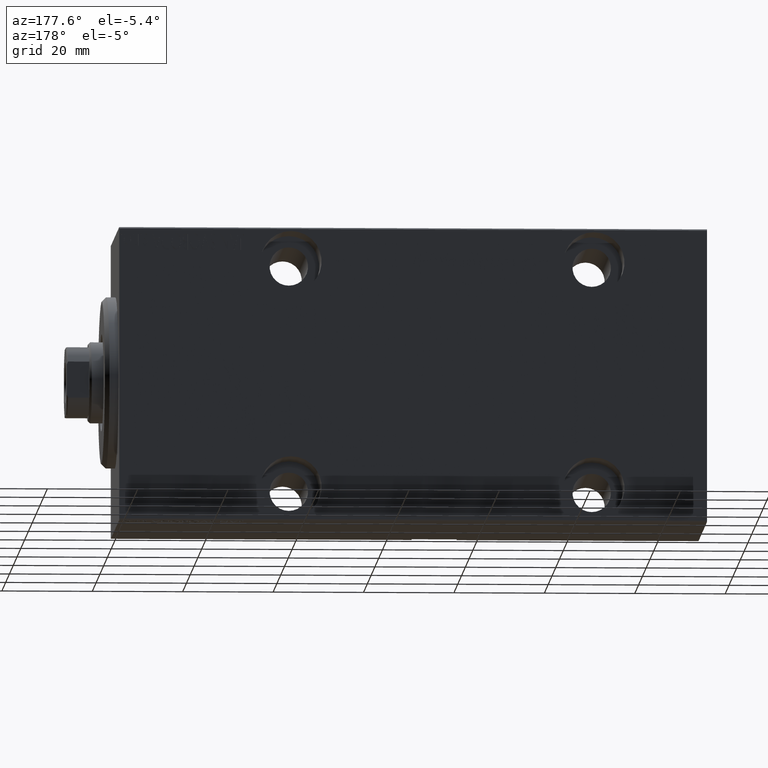
[diagram: clean part render]
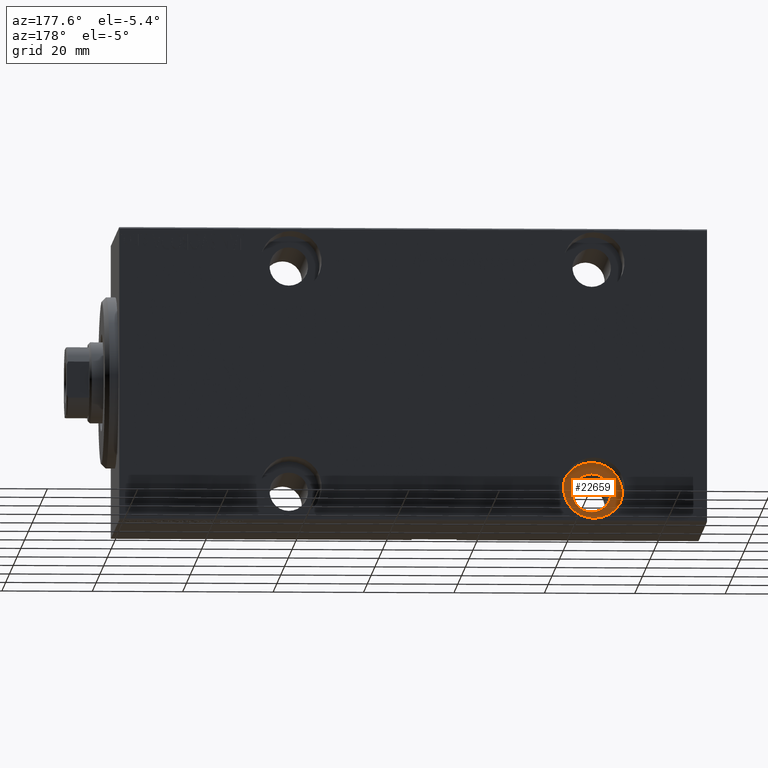
[diagram: same view with one face highlighted and labeled with its STEP entity id]
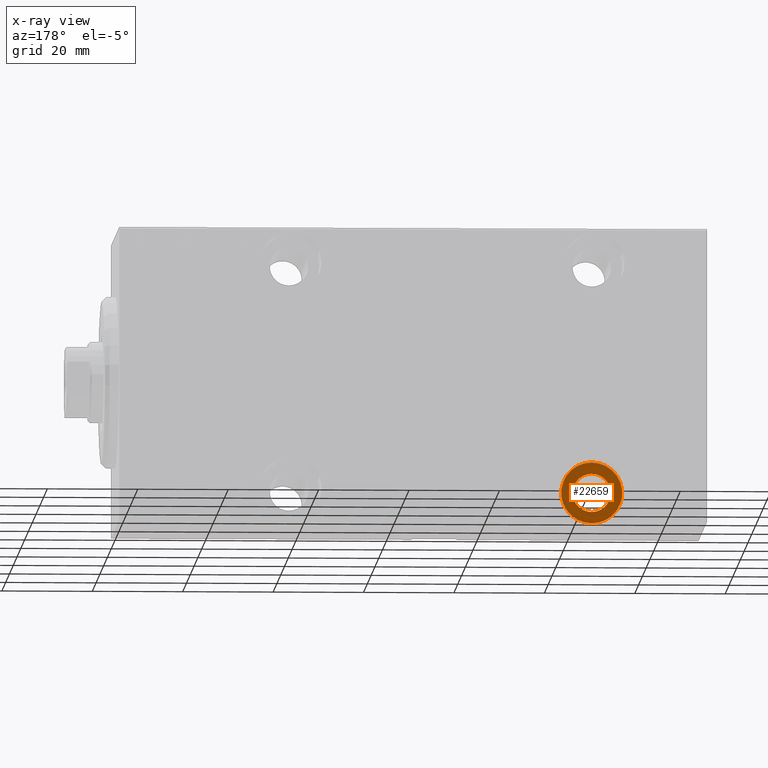
[diagram: x-ray of the same camera — body ghosted, the highlighted face saturated]
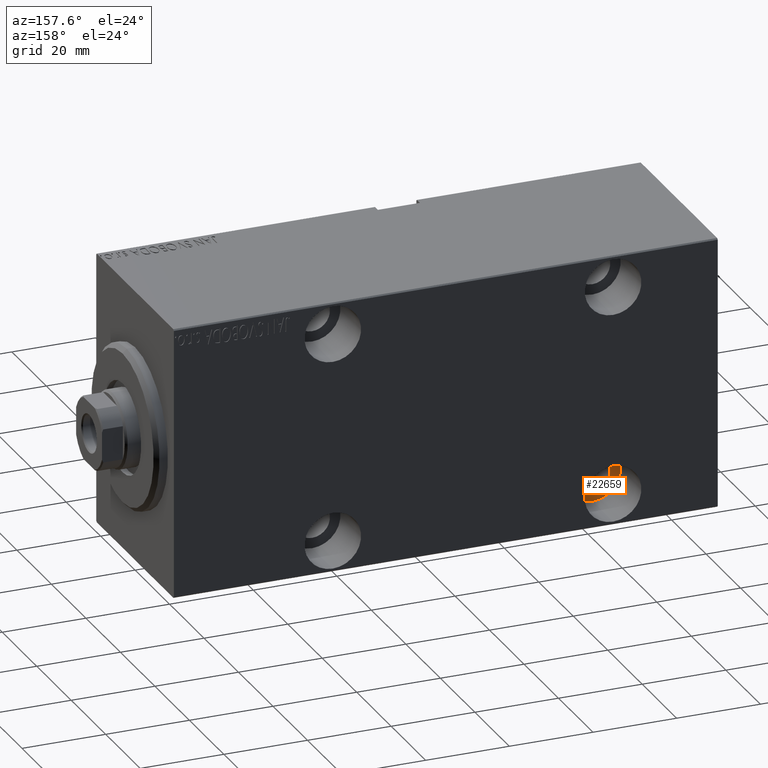
[diagram: same view with one face highlighted and labeled with its STEP entity id]
A machine part, auxiliary view. The second image highlights one B-rep face of the part: STEP entity #22659.
The next image is the same camera in x-ray: the body ghosted, the highlighted face saturated — about 0% of this face is hidden behind the body in this view.
A second angle (auxiliary view) of the same face is appended — the face is thin or edge-on in the first view.
In plain terms, the highlighted planar face has unit normal (0, 1, 0).
Its self-contained STEP definition (entity closure, byte-faithful):
#812 = DIRECTION ( 'NONE',  ( 0.000000000000000000, 0.000000000000000000, -1.000000000000000000 ) ) ;
#817 = AXIS2_PLACEMENT_3D ( 'NONE', #22912, #42435, #6422 ) ;
#1447 = EDGE_CURVE ( 'NONE', #11867, #24192, #18169, .T. ) ;
#3036 = CARTESIAN_POINT ( 'NONE',  ( 105.0000000000000142, -10.49999999999999467, -25.00000000000001421 ) ) ;
#6422 = DIRECTION ( 'NONE',  ( 0.000000000000000000, 0.000000000000000000, -1.000000000000000000 ) ) ;
#8928 = EDGE_LOOP ( 'NONE', ( #25080, #16443 ) ) ;
#9071 = FACE_OUTER_BOUND ( 'NONE', #8928, .T. ) ;
#9762 = DIRECTION ( 'NONE',  ( 0.000000000000000000, 0.000000000000000000, -1.000000000000000000 ) ) ;
#10317 = VERTEX_POINT ( 'NONE', #16777 ) ;
#11867 = VERTEX_POINT ( 'NONE', #40549 ) ;
#15093 = CARTESIAN_POINT ( 'NONE',  ( 105.0000000000000142, -10.49999999999999467, -29.25000000000001776 ) ) ;
#15711 = AXIS2_PLACEMENT_3D ( 'NONE', #30529, #40298, #812 ) ;
#16443 = ORIENTED_EDGE ( 'NONE', *, *, #39859, .T. ) ;
#16777 = CARTESIAN_POINT ( 'NONE',  ( 105.0000000000000142, -10.49999999999999467, -18.25000000000001776 ) ) ;
#16875 = CARTESIAN_POINT ( 'NONE',  ( 105.0000000000000142, -10.49999999999999467, -31.75000000000001421 ) ) ;
#17059 = VERTEX_POINT ( 'NONE', #16875 ) ;
#18169 = CIRCLE ( 'NONE', #817, 4.250000000000003553 ) ;
#18518 = CIRCLE ( 'NONE', #15711, 6.749999999999999112 ) ;
#19770 = EDGE_CURVE ( 'NONE', #17059, #10317, #18518, .T. ) ;
#19958 = DIRECTION ( 'NONE',  ( -0.000000000000000000, 1.000000000000000000, -0.000000000000000000 ) ) ;
#21667 = EDGE_CURVE ( 'NONE', #24192, #11867, #22684, .T. ) ;
#22309 = DIRECTION ( 'NONE',  ( 0.000000000000000000, -0.000000000000000000, -1.000000000000000000 ) ) ;
#22481 = ORIENTED_EDGE ( 'NONE', *, *, #21667, .T. ) ;
#22659 = ADVANCED_FACE ( 'NONE', ( #9071, #25356 ), #38583, .T. ) ;
#22684 = CIRCLE ( 'NONE', #42079, 4.250000000000003553 ) ;
#22912 = CARTESIAN_POINT ( 'NONE',  ( 105.0000000000000142, -10.49999999999999467, -25.00000000000001421 ) ) ;
#24192 = VERTEX_POINT ( 'NONE', #15093 ) ;
#24700 = DIRECTION ( 'NONE',  ( 0.000000000000000000, -1.000000000000000000, 0.000000000000000000 ) ) ;
#24718 = ORIENTED_EDGE ( 'NONE', *, *, #1447, .T. ) ;
#25080 = ORIENTED_EDGE ( 'NONE', *, *, #19770, .T. ) ;
#25356 = FACE_BOUND ( 'NONE', #33788, .T. ) ;
#25480 = AXIS2_PLACEMENT_3D ( 'NONE', #28391, #31652, #22309 ) ;
#28391 = CARTESIAN_POINT ( 'NONE',  ( 105.0000000000000142, -10.49999999999999467, -25.00000000000001421 ) ) ;
#30529 = CARTESIAN_POINT ( 'NONE',  ( 105.0000000000000142, -10.49999999999999467, -25.00000000000001421 ) ) ;
#30911 = AXIS2_PLACEMENT_3D ( 'NONE', #41195, #24700, #38153 ) ;
#31652 = DIRECTION ( 'NONE',  ( 0.000000000000000000, -1.000000000000000000, 0.000000000000000000 ) ) ;
#33788 = EDGE_LOOP ( 'NONE', ( #24718, #22481 ) ) ;
#38153 = DIRECTION ( 'NONE',  ( 0.000000000000000000, 0.000000000000000000, -1.000000000000000000 ) ) ;
#38583 = PLANE ( 'NONE',  #25480 ) ;
#39859 = EDGE_CURVE ( 'NONE', #10317, #17059, #42690, .T. ) ;
#40298 = DIRECTION ( 'NONE',  ( 0.000000000000000000, -1.000000000000000000, 0.000000000000000000 ) ) ;
#40549 = CARTESIAN_POINT ( 'NONE',  ( 105.0000000000000142, -10.49999999999999467, -20.75000000000001066 ) ) ;
#41195 = CARTESIAN_POINT ( 'NONE',  ( 105.0000000000000142, -10.49999999999999467, -25.00000000000001421 ) ) ;
#42079 = AXIS2_PLACEMENT_3D ( 'NONE', #3036, #19958, #9762 ) ;
#42435 = DIRECTION ( 'NONE',  ( -0.000000000000000000, 1.000000000000000000, -0.000000000000000000 ) ) ;
#42690 = CIRCLE ( 'NONE', #30911, 6.749999999999999112 ) ;